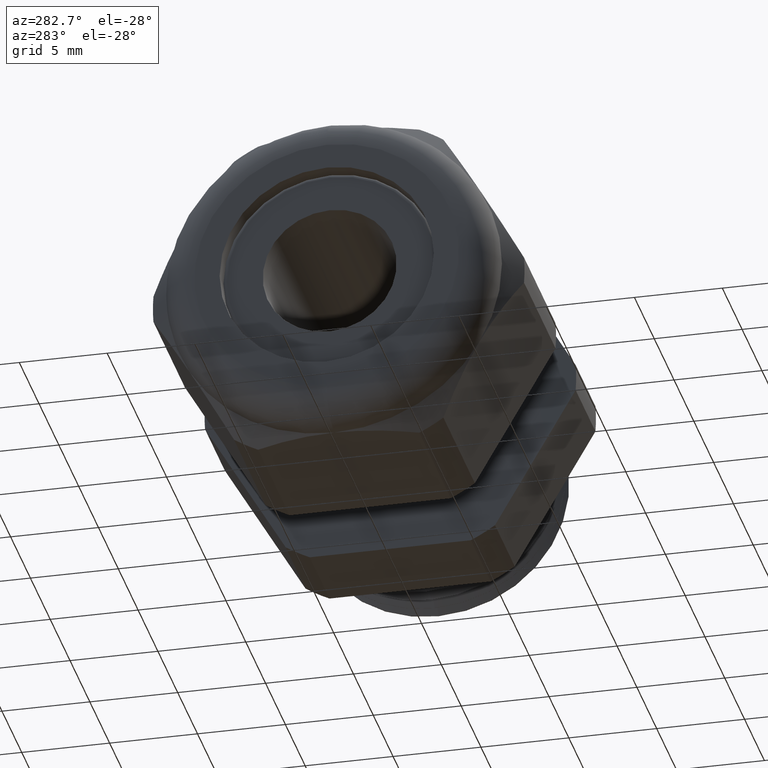
[diagram: clean part render]
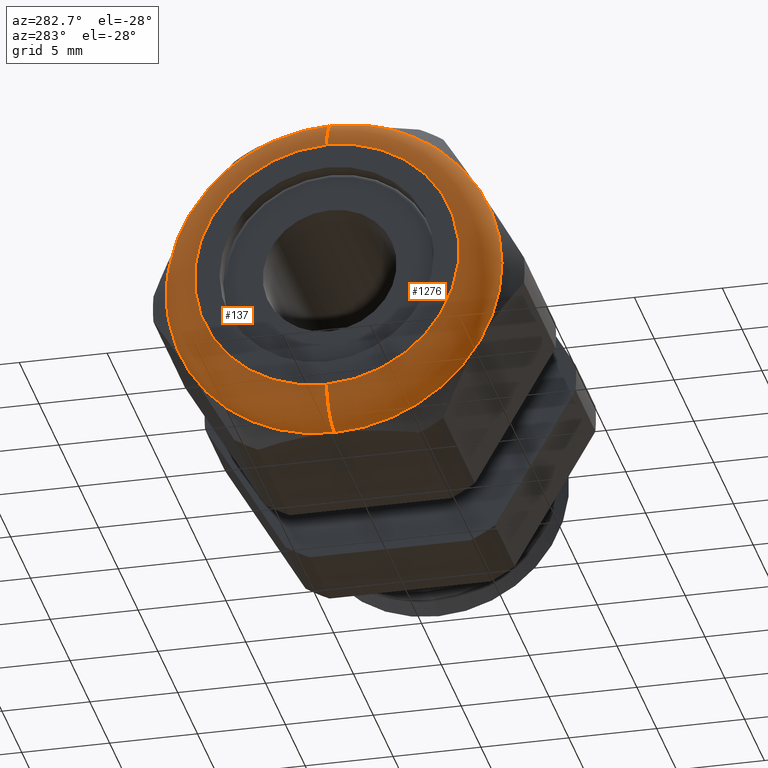
[diagram: same view with one multi-face feature highlighted, each face labeled with its STEP entity id]
A machine part, auxiliary view. The highlighted faces form ONE feature: a constant-radius fillet chain: 2 tangent blend faces with common blend radius 2 mm. The faces share edges in the B-rep.
Their STEP definitions:
[1] entity #1276 (Torus):
#36 = ORIENTED_EDGE ( 'NONE', *, *, #147, .T. ) ;
#41 = ORIENTED_EDGE ( 'NONE', *, *, #1063, .F. ) ;
#55 = ORIENTED_EDGE ( 'NONE', *, *, #56, .F. ) ;
#56 = EDGE_CURVE ( 'NONE', #505, #135, #1510, .T. ) ;
#57 = ORIENTED_EDGE ( 'NONE', *, *, #58, .F. ) ;
#58 = EDGE_CURVE ( 'NONE', #432, #505, #1505, .T. ) ;
#59 = ORIENTED_EDGE ( 'NONE', *, *, #60, .F. ) ;
#60 = EDGE_CURVE ( 'NONE', #150, #432, #1557, .T. ) ;
#135 = VERTEX_POINT ( 'NONE', #1587 ) ;
#136 = VERTEX_POINT ( 'NONE', #1586 ) ;
#140 = EDGE_CURVE ( 'NONE', #135, #136, #1411, .T. ) ;
#142 = VERTEX_POINT ( 'NONE', #2147 ) ;
#147 = EDGE_CURVE ( 'NONE', #150, #142, #2144, .T. ) ;
#150 = VERTEX_POINT ( 'NONE', #2149 ) ;
#432 = VERTEX_POINT ( 'NONE', #2603 ) ;
#505 = VERTEX_POINT ( 'NONE', #2751 ) ;
#895 = DIRECTION ( 'NONE',  ( 0.0000000000000000000, 0.0000000000000000000, 1.000000000000000000 ) ) ;
#896 = DIRECTION ( 'NONE',  ( -1.000000000000000000, 0.0000000000000000000, 0.0000000000000000000 ) ) ;
#897 = CARTESIAN_POINT ( 'NONE',  ( -1.139999999999999900, 0.0000000000000000000, 0.0000000000000000000 ) ) ;
#898 = AXIS2_PLACEMENT_3D ( 'NONE', #897, #896, #895 ) ;
#899 = CIRCLE ( 'NONE', #898, 0.2962598425196851200 ) ;
#1063 = EDGE_CURVE ( 'NONE', #136, #142, #899, .T. ) ;
#1248 = EDGE_LOOP ( 'NONE', ( #1400, #55, #57, #59, #36, #41 ) ) ;
#1276 = ADVANCED_FACE ( 'NONE', ( #1885 ), #1884, .T. ) ;
#1400 = ORIENTED_EDGE ( 'NONE', *, *, #140, .F. ) ;
#1406 = CARTESIAN_POINT ( 'NONE',  ( -1.061259842519684900, 3.628136678576313800E-017, -0.2962598425196851200 ) ) ;
#1411 = CIRCLE ( 'NONE', #1623, 0.07874015748031496000 ) ;
#1505 = CIRCLE ( 'NONE', #1561, 0.3750000000000001100 ) ;
#1506 = DIRECTION ( 'NONE',  ( 0.0000000000000000000, 0.0000000000000000000, -1.000000000000000000 ) ) ;
#1507 = DIRECTION ( 'NONE',  ( 1.000000000000000000, 0.0000000000000000000, 0.0000000000000000000 ) ) ;
#1508 = CARTESIAN_POINT ( 'NONE',  ( -1.061259842519684900, 0.0000000000000000000, 0.0000000000000000000 ) ) ;
#1509 = AXIS2_PLACEMENT_3D ( 'NONE', #1508, #1507, #1506 ) ;
#1510 = CIRCLE ( 'NONE', #1509, 0.3750000000000001100 ) ;
#1553 = DIRECTION ( 'NONE',  ( 0.0000000000000000000, 0.0000000000000000000, -1.000000000000000000 ) ) ;
#1554 = DIRECTION ( 'NONE',  ( 1.000000000000000000, 0.0000000000000000000, 0.0000000000000000000 ) ) ;
#1555 = CARTESIAN_POINT ( 'NONE',  ( -1.061259842519684900, 0.0000000000000000000, 0.0000000000000000000 ) ) ;
#1556 = AXIS2_PLACEMENT_3D ( 'NONE', #1555, #1554, #1553 ) ;
#1557 = CIRCLE ( 'NONE', #1556, 0.3750000000000001100 ) ;
#1558 = DIRECTION ( 'NONE',  ( 0.0000000000000000000, 0.0000000000000000000, -1.000000000000000000 ) ) ;
#1559 = DIRECTION ( 'NONE',  ( 1.000000000000000000, 0.0000000000000000000, 0.0000000000000000000 ) ) ;
#1560 = CARTESIAN_POINT ( 'NONE',  ( -1.061259842519684900, 0.0000000000000000000, 0.0000000000000000000 ) ) ;
#1561 = AXIS2_PLACEMENT_3D ( 'NONE', #1560, #1559, #1558 ) ;
#1586 = CARTESIAN_POINT ( 'NONE',  ( -1.139999999999999900, 4.110281087689444600E-017, -0.2962598425196851200 ) ) ;
#1587 = CARTESIAN_POINT ( 'NONE',  ( -1.061259842519684900, 0.0000000000000000000, -0.3749999999999998300 ) ) ;
#1623 = AXIS2_PLACEMENT_3D ( 'NONE', #1406, #1625, #1624 ) ;
#1624 = DIRECTION ( 'NONE',  ( 0.0000000000000000000, -1.224646799147353500E-016, 1.000000000000000000 ) ) ;
#1625 = DIRECTION ( 'NONE',  ( 0.0000000000000000000, 1.000000000000000000, 1.224646799147353200E-016 ) ) ;
#1880 = DIRECTION ( 'NONE',  ( 0.0000000000000000000, 0.0000000000000000000, 1.000000000000000000 ) ) ;
#1881 = DIRECTION ( 'NONE',  ( -1.000000000000000000, 0.0000000000000000000, 0.0000000000000000000 ) ) ;
#1882 = AXIS2_PLACEMENT_3D ( 'NONE', #1891, #1881, #1880 ) ;
#1884 = TOROIDAL_SURFACE ( 'NONE', #1882, 0.2962598425196851200, 0.07874015748031496000 ) ;
#1885 = FACE_OUTER_BOUND ( 'NONE', #1248, .T. ) ;
#1891 = CARTESIAN_POINT ( 'NONE',  ( -1.061259842519684900, 0.0000000000000000000, 0.0000000000000000000 ) ) ;
#2140 = DIRECTION ( 'NONE',  ( 0.0000000000000000000, 0.0000000000000000000, -1.000000000000000000 ) ) ;
#2141 = DIRECTION ( 'NONE',  ( 0.0000000000000000000, -1.000000000000000000, 0.0000000000000000000 ) ) ;
#2142 = CARTESIAN_POINT ( 'NONE',  ( -1.061259842519684900, 0.0000000000000000000, 0.2962598425196851200 ) ) ;
#2143 = AXIS2_PLACEMENT_3D ( 'NONE', #2142, #2141, #2140 ) ;
#2144 = CIRCLE ( 'NONE', #2143, 0.07874015748031496000 ) ;
#2147 = CARTESIAN_POINT ( 'NONE',  ( -1.139999999999999900, 0.0000000000000000000, 0.2962598425196851200 ) ) ;
#2149 = CARTESIAN_POINT ( 'NONE',  ( -1.061259842519684900, 0.0000000000000000000, 0.3749999999999998300 ) ) ;
#2603 = CARTESIAN_POINT ( 'NONE',  ( -1.061259842519684900, -0.3247595264191643900, 0.1874999999999998300 ) ) ;
#2751 = CARTESIAN_POINT ( 'NONE',  ( -1.061259842519684900, -0.3247595264191642800, -0.1875000000000000300 ) ) ;
[2] entity #137 (Torus):
#122 = VERTEX_POINT ( 'NONE', #1602 ) ;
#127 = EDGE_CURVE ( 'NONE', #157, #122, #1620, .T. ) ;
#130 = ORIENTED_EDGE ( 'NONE', *, *, #127, .F. ) ;
#131 = EDGE_CURVE ( 'NONE', #122, #150, #1593, .T. ) ;
#134 = ORIENTED_EDGE ( 'NONE', *, *, #131, .F. ) ;
#135 = VERTEX_POINT ( 'NONE', #1587 ) ;
#136 = VERTEX_POINT ( 'NONE', #1586 ) ;
#137 = ADVANCED_FACE ( 'NONE', ( #1585 ), #1583, .T. ) ;
#138 = EDGE_LOOP ( 'NONE', ( #153, #143, #145, #159, #134, #130 ) ) ;
#139 = EDGE_CURVE ( 'NONE', #135, #157, #1572, .T. ) ;
#140 = EDGE_CURVE ( 'NONE', #135, #136, #1411, .T. ) ;
#142 = VERTEX_POINT ( 'NONE', #2147 ) ;
#143 = ORIENTED_EDGE ( 'NONE', *, *, #140, .T. ) ;
#145 = ORIENTED_EDGE ( 'NONE', *, *, #151, .F. ) ;
#147 = EDGE_CURVE ( 'NONE', #150, #142, #2144, .T. ) ;
#150 = VERTEX_POINT ( 'NONE', #2149 ) ;
#151 = EDGE_CURVE ( 'NONE', #142, #136, #2148, .T. ) ;
#153 = ORIENTED_EDGE ( 'NONE', *, *, #139, .F. ) ;
#157 = VERTEX_POINT ( 'NONE', #2128 ) ;
#159 = ORIENTED_EDGE ( 'NONE', *, *, #147, .F. ) ;
#1406 = CARTESIAN_POINT ( 'NONE',  ( -1.061259842519684900, 3.628136678576313800E-017, -0.2962598425196851200 ) ) ;
#1411 = CIRCLE ( 'NONE', #1623, 0.07874015748031496000 ) ;
#1568 = DIRECTION ( 'NONE',  ( 0.0000000000000000000, 0.0000000000000000000, -1.000000000000000000 ) ) ;
#1569 = DIRECTION ( 'NONE',  ( 1.000000000000000000, 0.0000000000000000000, 0.0000000000000000000 ) ) ;
#1570 = CARTESIAN_POINT ( 'NONE',  ( -1.061259842519684900, 0.0000000000000000000, 0.0000000000000000000 ) ) ;
#1571 = AXIS2_PLACEMENT_3D ( 'NONE', #1570, #1569, #1568 ) ;
#1572 = CIRCLE ( 'NONE', #1571, 0.3750000000000001100 ) ;
#1573 = DIRECTION ( 'NONE',  ( 0.0000000000000000000, 0.0000000000000000000, 1.000000000000000000 ) ) ;
#1574 = DIRECTION ( 'NONE',  ( -1.000000000000000000, 0.0000000000000000000, 0.0000000000000000000 ) ) ;
#1582 = AXIS2_PLACEMENT_3D ( 'NONE', #1584, #1574, #1573 ) ;
#1583 = TOROIDAL_SURFACE ( 'NONE', #1582, 0.2962598425196851200, 0.07874015748031496000 ) ;
#1584 = CARTESIAN_POINT ( 'NONE',  ( -1.061259842519684900, 0.0000000000000000000, 0.0000000000000000000 ) ) ;
#1585 = FACE_OUTER_BOUND ( 'NONE', #138, .T. ) ;
#1586 = CARTESIAN_POINT ( 'NONE',  ( -1.139999999999999900, 4.110281087689444600E-017, -0.2962598425196851200 ) ) ;
#1587 = CARTESIAN_POINT ( 'NONE',  ( -1.061259842519684900, 0.0000000000000000000, -0.3749999999999998300 ) ) ;
#1589 = DIRECTION ( 'NONE',  ( 0.0000000000000000000, 0.0000000000000000000, -1.000000000000000000 ) ) ;
#1590 = DIRECTION ( 'NONE',  ( 1.000000000000000000, 0.0000000000000000000, 0.0000000000000000000 ) ) ;
#1591 = CARTESIAN_POINT ( 'NONE',  ( -1.061259842519684900, 0.0000000000000000000, 0.0000000000000000000 ) ) ;
#1592 = AXIS2_PLACEMENT_3D ( 'NONE', #1591, #1590, #1589 ) ;
#1593 = CIRCLE ( 'NONE', #1592, 0.3750000000000001100 ) ;
#1602 = CARTESIAN_POINT ( 'NONE',  ( -1.061259842519684900, 0.3247595264191642800, 0.1874999999999999700 ) ) ;
#1616 = DIRECTION ( 'NONE',  ( 0.0000000000000000000, 0.0000000000000000000, -1.000000000000000000 ) ) ;
#1617 = DIRECTION ( 'NONE',  ( 1.000000000000000000, 0.0000000000000000000, 0.0000000000000000000 ) ) ;
#1618 = CARTESIAN_POINT ( 'NONE',  ( -1.061259842519684900, 0.0000000000000000000, 0.0000000000000000000 ) ) ;
#1619 = AXIS2_PLACEMENT_3D ( 'NONE', #1618, #1617, #1616 ) ;
#1620 = CIRCLE ( 'NONE', #1619, 0.3750000000000001100 ) ;
#1623 = AXIS2_PLACEMENT_3D ( 'NONE', #1406, #1625, #1624 ) ;
#1624 = DIRECTION ( 'NONE',  ( 0.0000000000000000000, -1.224646799147353500E-016, 1.000000000000000000 ) ) ;
#1625 = DIRECTION ( 'NONE',  ( 0.0000000000000000000, 1.000000000000000000, 1.224646799147353200E-016 ) ) ;
#2128 = CARTESIAN_POINT ( 'NONE',  ( -1.061259842519684900, 0.3247595264191643900, -0.1874999999999998900 ) ) ;
#2140 = DIRECTION ( 'NONE',  ( 0.0000000000000000000, 0.0000000000000000000, -1.000000000000000000 ) ) ;
#2141 = DIRECTION ( 'NONE',  ( 0.0000000000000000000, -1.000000000000000000, 0.0000000000000000000 ) ) ;
#2142 = CARTESIAN_POINT ( 'NONE',  ( -1.061259842519684900, 0.0000000000000000000, 0.2962598425196851200 ) ) ;
#2143 = AXIS2_PLACEMENT_3D ( 'NONE', #2142, #2141, #2140 ) ;
#2144 = CIRCLE ( 'NONE', #2143, 0.07874015748031496000 ) ;
#2147 = CARTESIAN_POINT ( 'NONE',  ( -1.139999999999999900, 0.0000000000000000000, 0.2962598425196851200 ) ) ;
#2148 = CIRCLE ( 'NONE', #2163, 0.2962598425196851200 ) ;
#2149 = CARTESIAN_POINT ( 'NONE',  ( -1.061259842519684900, 0.0000000000000000000, 0.3749999999999998300 ) ) ;
#2160 = DIRECTION ( 'NONE',  ( 0.0000000000000000000, 0.0000000000000000000, 1.000000000000000000 ) ) ;
#2161 = DIRECTION ( 'NONE',  ( -1.000000000000000000, 0.0000000000000000000, 0.0000000000000000000 ) ) ;
#2162 = CARTESIAN_POINT ( 'NONE',  ( -1.139999999999999900, 0.0000000000000000000, 0.0000000000000000000 ) ) ;
#2163 = AXIS2_PLACEMENT_3D ( 'NONE', #2162, #2161, #2160 ) ;